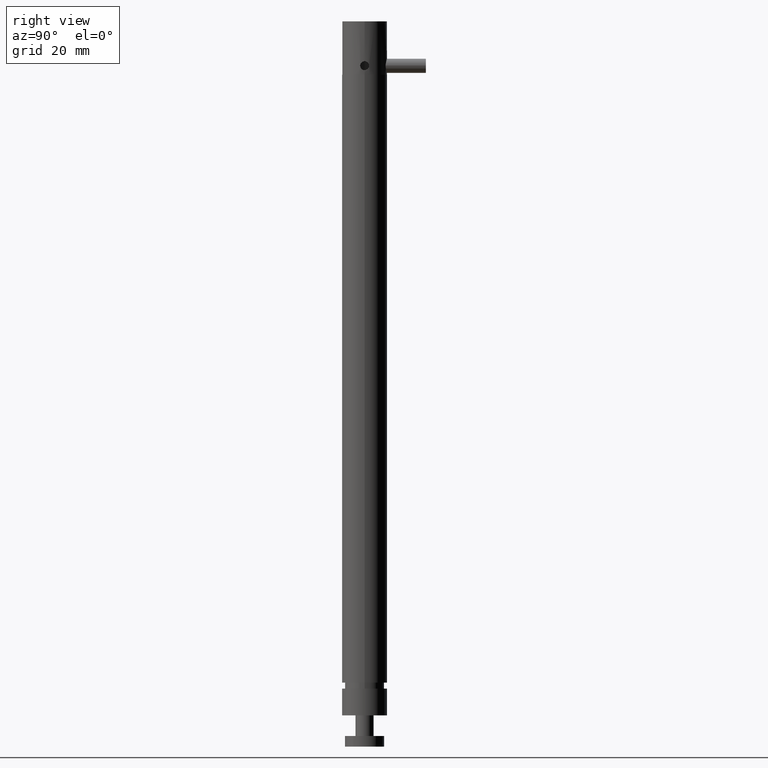
[diagram: clean part render]
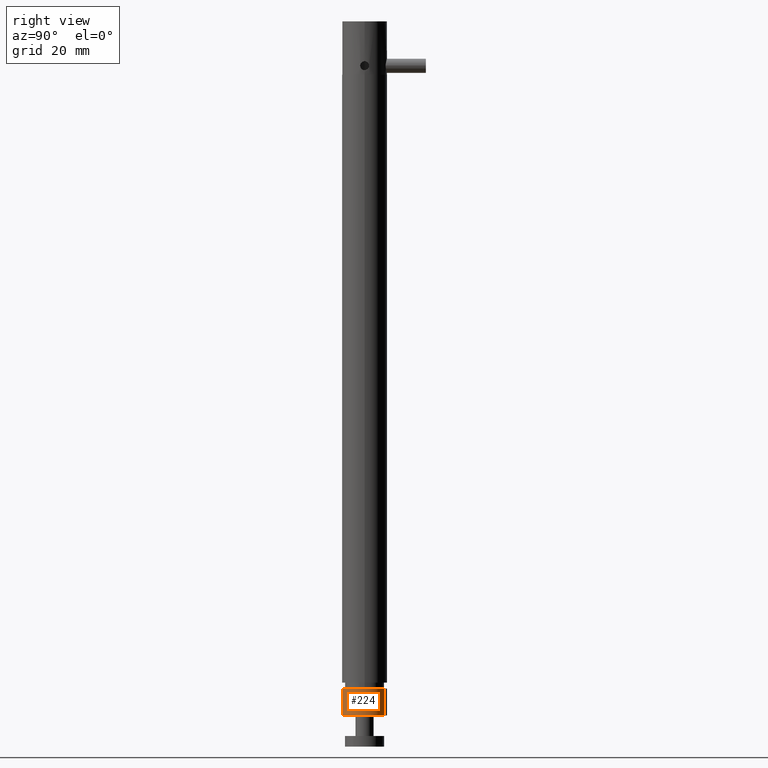
[diagram: same view with one face highlighted and labeled with its STEP entity id]
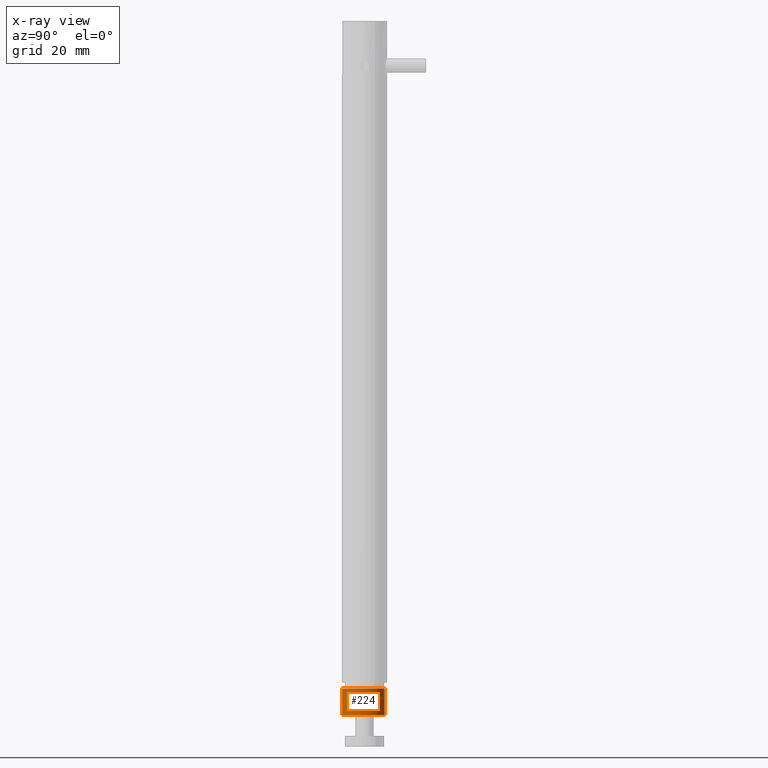
[diagram: x-ray of the same camera — body ghosted, the highlighted face saturated]
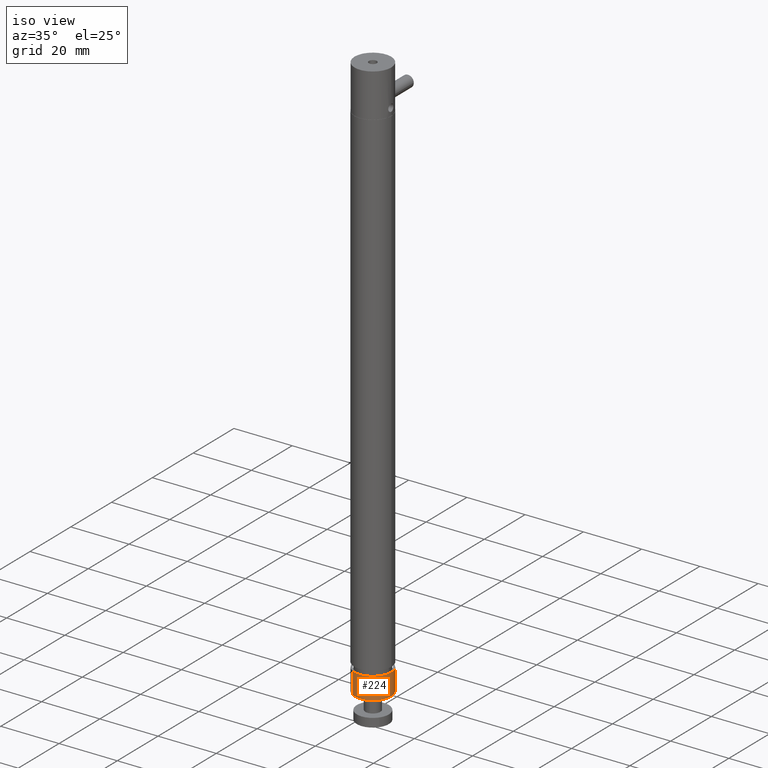
[diagram: same view with one face highlighted and labeled with its STEP entity id]
A machine part, right view. The second image highlights one B-rep face of the part: STEP entity #224.
The next image is the same camera in x-ray: the body ghosted, the highlighted face saturated — about 0% of this face is hidden behind the body in this view.
A second angle (iso view) of the same face is appended — the face is thin or edge-on in the first view.
In plain terms, the highlighted cylindrical surface (edge-blend (fillet) strip) has radius 6.3 mm, axis along (0, 0, 1).
Its self-contained STEP definition (entity closure, byte-faithful):
#188 = VERTEX_POINT ( 'NONE', #1126 ) ;
#189 = VERTEX_POINT ( 'NONE', #1125 ) ;
#191 = EDGE_CURVE ( 'NONE', #189, #192, #1124, .T. ) ;
#192 = VERTEX_POINT ( 'NONE', #1120 ) ;
#223 = EDGE_CURVE ( 'NONE', #189, #188, #1213, .T. ) ;
#224 = ADVANCED_FACE ( 'NONE', ( #1214 ), #1242, .T. ) ;
#225 = EDGE_LOOP ( 'NONE', ( #226, #227, #228, #229 ) ) ;
#226 = ORIENTED_EDGE ( 'NONE', *, *, #191, .F. ) ;
#227 = ORIENTED_EDGE ( 'NONE', *, *, #223, .T. ) ;
#228 = ORIENTED_EDGE ( 'NONE', *, *, #239, .T. ) ;
#229 = ORIENTED_EDGE ( 'NONE', *, *, #230, .F. ) ;
#230 = EDGE_CURVE ( 'NONE', #192, #237, #1237, .T. ) ;
#237 = VERTEX_POINT ( 'NONE', #1304 ) ;
#239 = EDGE_CURVE ( 'NONE', #188, #237, #1302, .T. ) ;
#1120 = CARTESIAN_POINT ( 'NONE',  ( -1.419218495707161600, -1.858021785018801900, -5.737330014678437200 ) ) ;
#1121 = DIRECTION ( 'NONE',  ( 0.0000000000000000000, 0.0000000000000000000, 1.000000000000000000 ) ) ;
#1122 = VECTOR ( 'NONE', #1121, 39.37007874015748100 ) ;
#1123 = CARTESIAN_POINT ( 'NONE',  ( -1.419218495707161600, -1.858021785018801700, -6.032605605229618600 ) ) ;
#1124 = LINE ( 'NONE', #1123, #1122 ) ;
#1125 = CARTESIAN_POINT ( 'NONE',  ( -1.419218495707161600, -1.858021785018801700, -6.032605605229618600 ) ) ;
#1126 = CARTESIAN_POINT ( 'NONE',  ( -1.187075428013209900, -1.419629166150023800, -6.032605605229618600 ) ) ;
#1209 = DIRECTION ( 'NONE',  ( 0.4679709459862197400, 0.8837438507354733500, 0.0000000000000000000 ) ) ;
#1210 = DIRECTION ( 'NONE',  ( 0.0000000000000000000, 0.0000000000000000000, 1.000000000000000000 ) ) ;
#1211 = CARTESIAN_POINT ( 'NONE',  ( -1.303146961860185600, -1.638825475584412700, -6.032605605229618600 ) ) ;
#1212 = AXIS2_PLACEMENT_3D ( 'NONE', #1211, #1210, #1209 ) ;
#1213 = CIRCLE ( 'NONE', #1212, 0.2480314960629920700 ) ;
#1214 = FACE_OUTER_BOUND ( 'NONE', #225, .T. ) ;
#1234 = DIRECTION ( 'NONE',  ( 0.4679709459862197400, 0.8837438507354733500, 0.0000000000000000000 ) ) ;
#1235 = DIRECTION ( 'NONE',  ( 0.0000000000000000000, 0.0000000000000000000, 1.000000000000000000 ) ) ;
#1236 = AXIS2_PLACEMENT_3D ( 'NONE', #1243, #1235, #1234 ) ;
#1237 = CIRCLE ( 'NONE', #1236, 0.2480314960629920700 ) ;
#1239 = DIRECTION ( 'NONE',  ( 0.4679709459862197400, 0.8837438507354733500, 0.0000000000000000000 ) ) ;
#1240 = DIRECTION ( 'NONE',  ( 0.0000000000000000000, 0.0000000000000000000, 1.000000000000000000 ) ) ;
#1241 = AXIS2_PLACEMENT_3D ( 'NONE', #1244, #1240, #1239 ) ;
#1242 = CYLINDRICAL_SURFACE ( 'NONE', #1241, 0.2480314960629920700 ) ;
#1243 = CARTESIAN_POINT ( 'NONE',  ( -1.303146961860185600, -1.638825475584412900, -5.737330014678437200 ) ) ;
#1244 = CARTESIAN_POINT ( 'NONE',  ( -1.303146961860185600, -1.638825475584412700, -6.032605605229618600 ) ) ;
#1299 = DIRECTION ( 'NONE',  ( 0.0000000000000000000, 0.0000000000000000000, 1.000000000000000000 ) ) ;
#1300 = VECTOR ( 'NONE', #1299, 39.37007874015748100 ) ;
#1301 = CARTESIAN_POINT ( 'NONE',  ( -1.187075428013209900, -1.419629166150023800, -6.032605605229618600 ) ) ;
#1302 = LINE ( 'NONE', #1301, #1300 ) ;
#1304 = CARTESIAN_POINT ( 'NONE',  ( -1.187075428013209900, -1.419629166150024000, -5.737330014678437200 ) ) ;